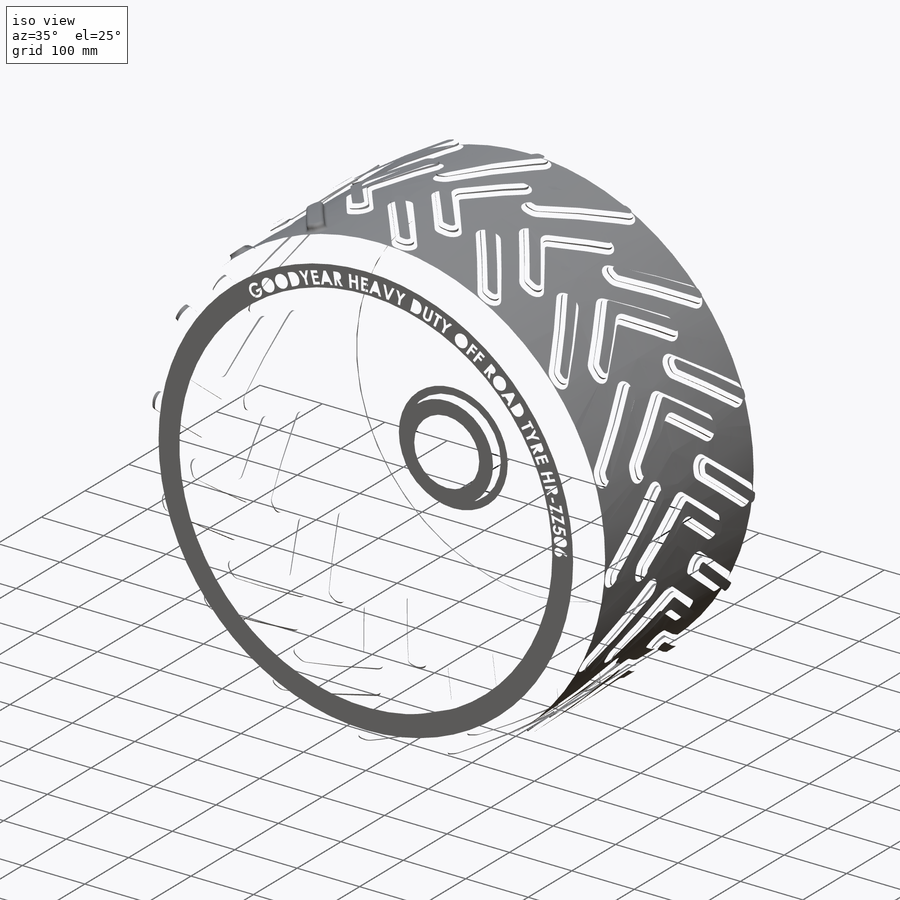
[diagram: iso view]
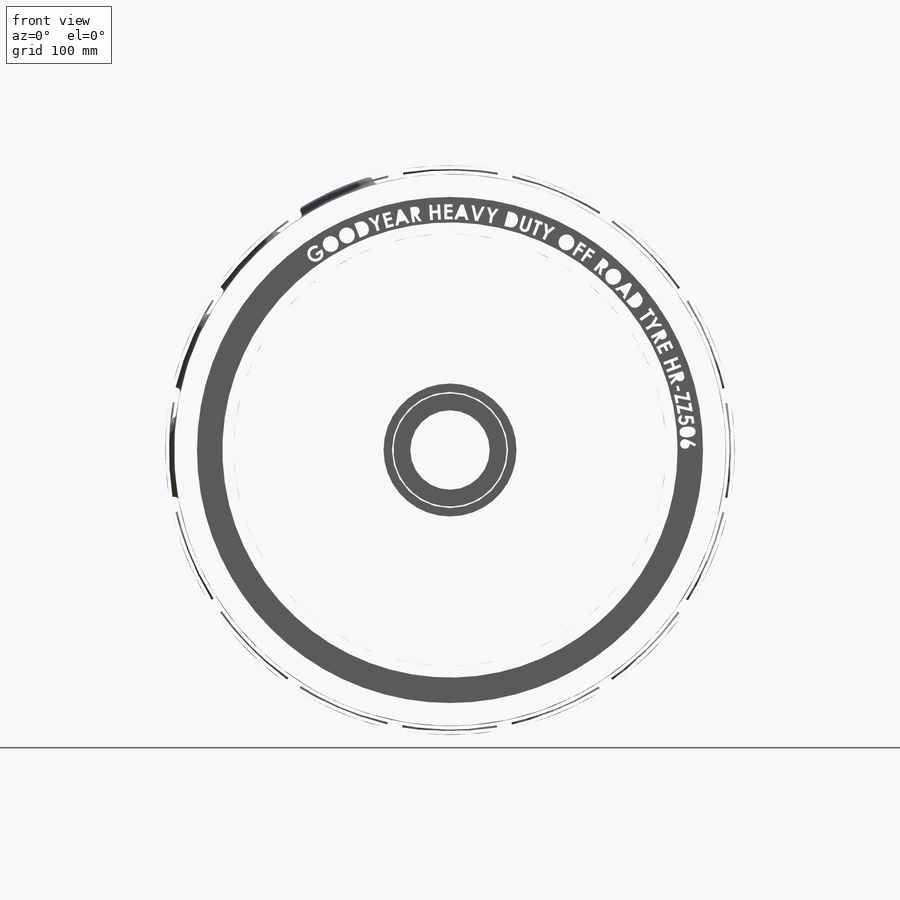
[diagram: front view]
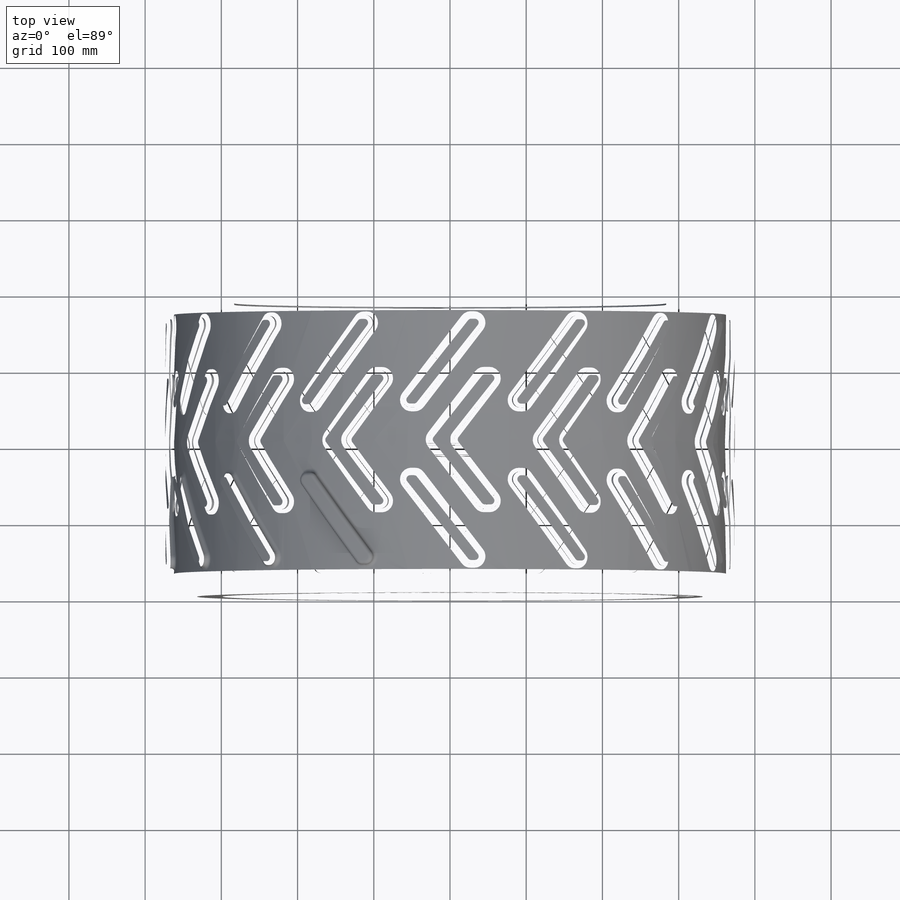
[diagram: top view]
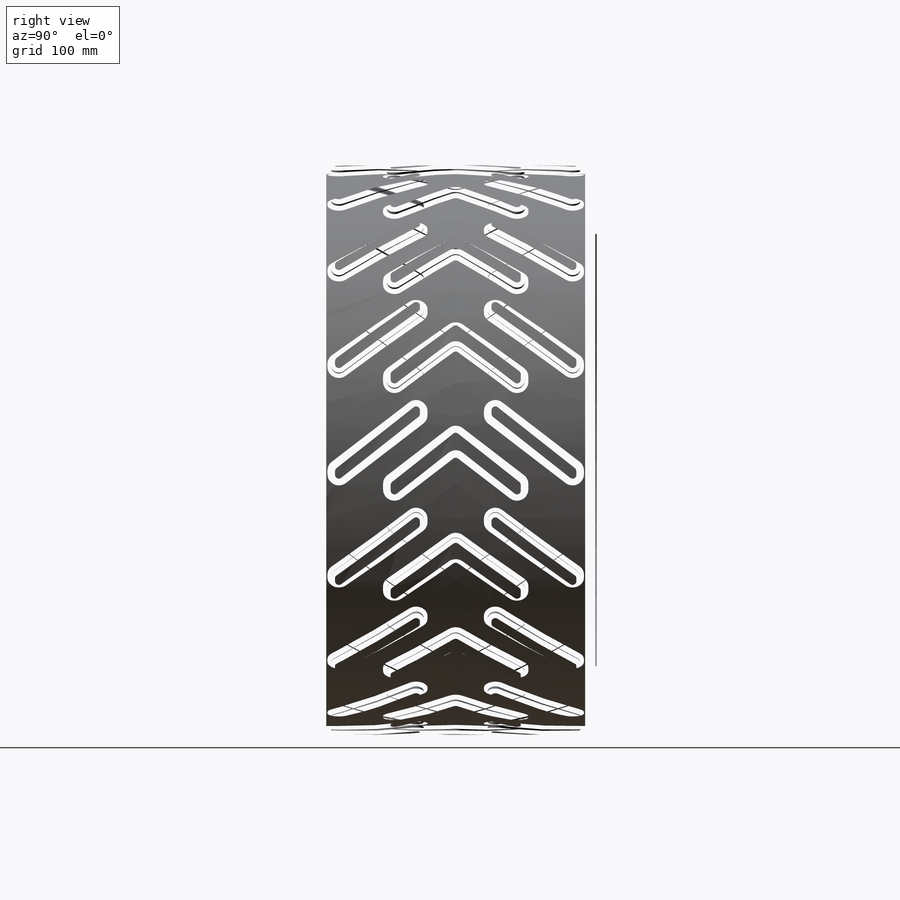
[diagram: right view]
SOLIDWORKS PART (.sldprt)
format: sldprt  version: not decoded by parser v0  size: 7,225,856 bytes
history: native  units: mm
features: sketch x17, fillet x12, extrude x9, cut_extrude x7, pattern_circular x2, material x1, cut_revolve x1, plane x1 (+13 scaffold rows collapsed)
feature tree (63):
  scaffold x13  (default folders/planes/origin — collapsed)
  material  "Material <not specified>"
  sketch  "Sketch1"  dims[D1=50.0mm]
  extrude  "Boss-Extrude1"  Depth=200mm
  sketch  "Sketch2"  dims[D1=10.0mm]
  extrude  "Boss-Extrude2"  Depth=375mm
  sketch  "Sketch3"  dims[D1=10.0mm]
  extrude  "Boss-Extrude3"  Depth=406mm
  fillet  "Fillet4"  Radius=10mm
  sketch  "Sketch4"  dims[D1=50.0mm]
  cut_extrude  "Cut-Extrude1"  Depth=540mm
  sketch  "Sketch5"
  extrude  "Boss-Extrude4"  [1 undecoded]
  pattern_circular  "CirPattern9"  Count=16 Angle=360deg
  sketch  "Sketch7"
  cut_extrude  "Cut-Extrude2"  Depth=540mm
  fillet  "Fillet22"  Radius=5mm
  sketch  "Sketch8"  dims[D1=~29.248052mm]
  cut_revolve  "Cut-Revolve2"  Angle=360deg
  sketch  "Sketch9"
  cut_extrude  "Cut-Extrude3"  Depth=540mm
  fillet  "Fillet23"  Radius=15mm
  sketch  "Sketch10"
  extrude  "Boss-Extrude5"  Depth=177mm
  fillet  "Fillet24"  Radius=15mm
  fillet  "Fillet25"  Radius=15mm
  fillet  "Fillet26"  Radius=2mm
  sketch  "Sketch11"
  extrude  "Boss-Extrude6"  Depth=132mm
  plane  "Plane1"  Offset=20mm
  sketch  "Sketch12"  dims[D1=50.0mm]
  extrude  "Boss-Extrude7"  Depth=101mm
  pattern_circular  "CirPattern10"  Count=5 Angle=360deg
  fillet  "Fillet27"  Radius=32mm
  fillet  "Fillet28"  Radius=32mm
  fillet  "Fillet30"  Radius=5mm
  fillet  "Fillet31"  Radius=5mm
  sketch  "Sketch13"
  extrude  "Boss-Extrude8"  Depth=15mm
  sketch  "Sketch14"
  extrude  "Boss-Extrude9"  Depth=56mm
  fillet  "Fillet32"  Radius=15mm
  sketch  "Sketch15"  dims[D1=14.0]
  cut_extrude  "Cut-Extrude4"  Depth=37mm
  fillet  "Fillet33"  Radius=2mm
  sketch  "Sketch16"
  cut_extrude  "Cut-Extrude5"  Depth=20mm
  sketch  "Sketch17"
  cut_extrude  "Cut-Extrude6"  Depth=12mm
  sketch  "Sketch18"
  cut_extrude  "Cut-Extrude7"  Depth=0.1mm
decode coverage: 37 of 48 modeling features carry decoded parameters
note: ~ marks probable driven/reference dimensions
note: 1 parameter value undecoded
note: suppression state not decoded; provenance and decode notes live in map.json
